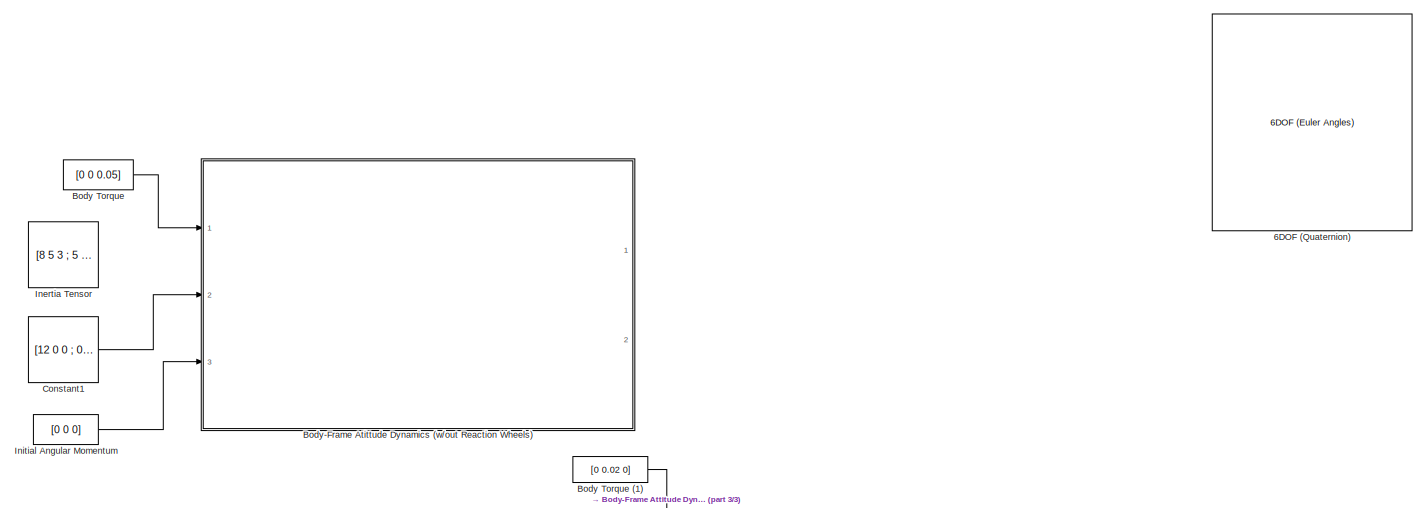
[diagram: root canvas - part 1/3, top center region]
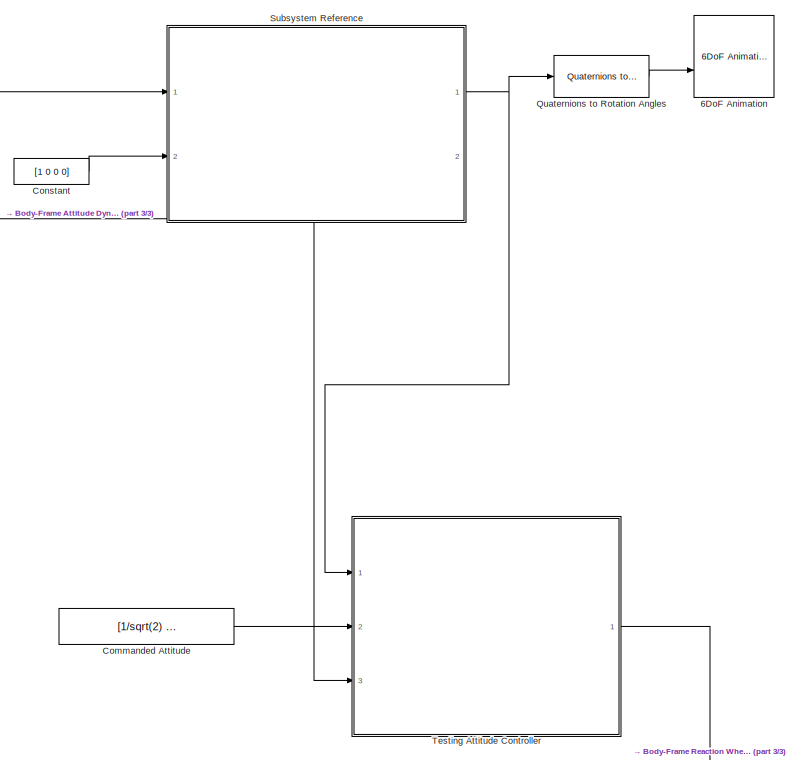
[diagram: root canvas - part 2/3, bottom right region]
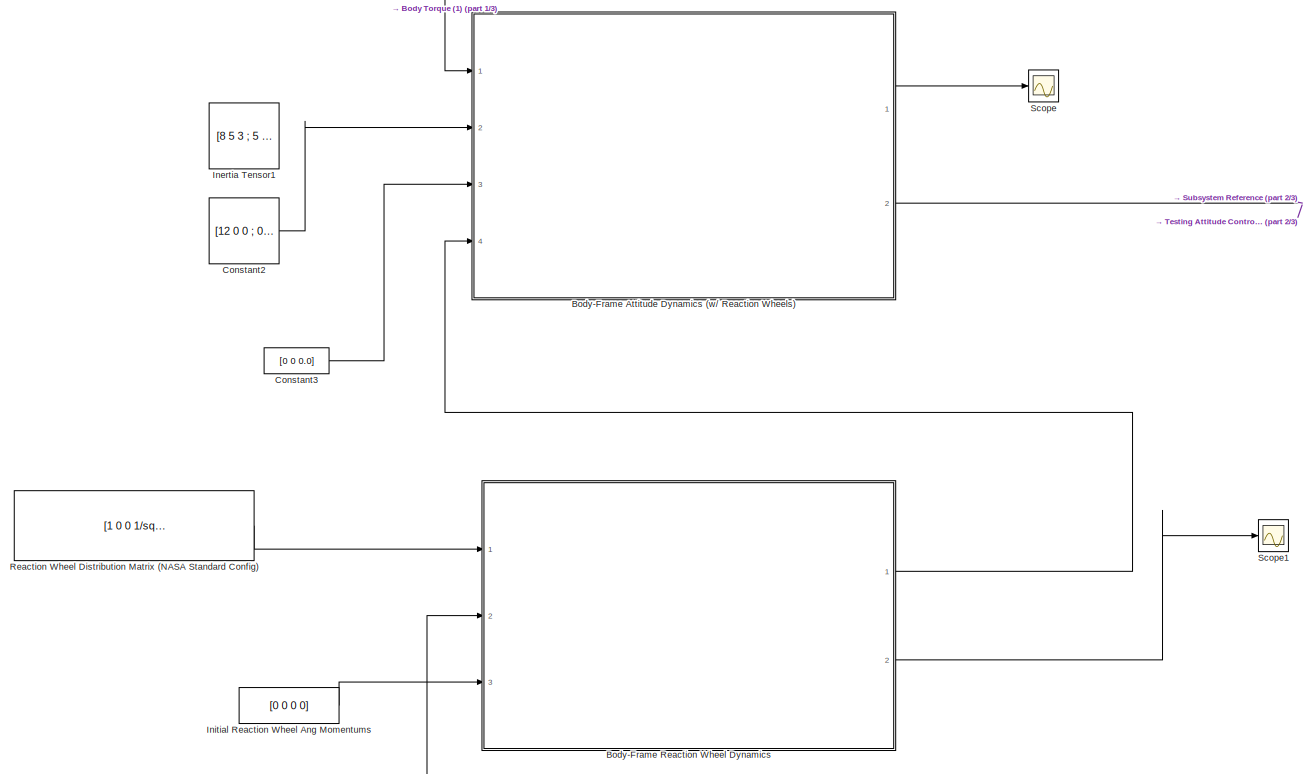
[diagram: root canvas - part 3/3, bottom left region]
MODEL slx_41835d9d7def
KIND model
CONFIG AbsTol = auto
CONFIG EnableMultiTasking = off
CONFIG FixedStep = auto
CONFIG MaxStep = auto
CONFIG MinStep = auto
CONFIG RelTol = 1e-3
CONFIG SampleTimeConstraint = Unconstrained
CONFIG SolverName = VariableStepAuto
CONFIG StartTime = 0.0
CONFIG StopTime = 1000
BLOCK [Reference] 6DOF (Quaternion)  REF=shared6dof/6DOF (Euler Angles)
  Ports = [2, 8]
  SourceBlock = shared6dof/6DOF (Euler Angles)
  SourceProductBaseCode = AE,PW,DR,MT,VE
  SourceType = 6DOF EoM (Body Axis)
BLOCK [Reference] 6DoF Animation  REF=aerolibanim/6DoF Animation
  Ports = [2]
  SourceBlock = aerolibanim/6DoF Animation
  SourceProductBaseCode = AE
  SourceType = 6DoF_Animation
BLOCK [Constant] Body Torque
  Value = [0 0 0.05]
BLOCK [Constant] Body Torque (1)
  Value = [0 0.02 0]
BLOCK [SubSystem] Body-Frame Atittude Dynamics (w//out Reaction Wheels)
  Ports = [3, 2]
  ReferencedSubsystem = quat_dyn_body
  RequestExecContextInheritance = off
BLOCK [SubSystem] Body-Frame Attitude Dynamics (w// Reaction Wheels)
  Ports = [4, 2]
  ReferencedSubsystem = quat_dyn_body_w_wheels
  RequestExecContextInheritance = off
BLOCK [SubSystem] Body-Frame Reaction Wheel Dynamics
  Ports = [3, 2]
  ReferencedSubsystem = wheel_dyn
  RequestExecContextInheritance = off
BLOCK [Constant] Commanded Attitude
  Value = [1/sqrt(2) 0 1/sqrt(2) 0]
BLOCK [Constant] Constant
  Value = [1 0 0 0]
BLOCK [Constant] Constant1
  Value = [12 0 0 ; 0 10 0 ; 0 0 11]
BLOCK [Constant] Constant2
  Value = [12 0 0 ; 0 10 0 ; 0 0 11]
BLOCK [Constant] Constant3
  Value = [0 0 0.0]
BLOCK [Constant] Inertia Tensor
  Value = [8 5 3 ; 5 10 4 ; 3 4 11]
BLOCK [Constant] Inertia Tensor1
  Value = [8 5 3 ; 5 10 4 ; 3 4 11]
BLOCK [Constant] Initial Angular Momentum
  Value = [0 0 0]
BLOCK [Constant] Initial Reaction Wheel Ang Momentums
  Value = [0 0 0 0]
BLOCK [Reference] Quaternions to Rotation Angles  REF=sharedtransform/Quaternions to Rotation Angles
  AttributesFormatString = Rotation Order: %<rotationOrder>
  Ports = [1, 1]
  SourceBlock = sharedtransform/Quaternions to Rotation Angles
  SourceProductBaseCode = AE,PW,DR,MT,VE
  SourceType = Quat2Ang
BLOCK [Constant] Reaction Wheel Distribution Matrix (NASA Standard Config)
  Value = [1 0 0 1/sqrt(3); 0 1 0 1/sqrt(3) ; 0 0 1 1/sqrt(3)]
BLOCK [Scope] Scope
  Floating = off
  NumInputPorts = 1
  Ports = [1]
  ScopeSpecificationString = Simulink.scopes.TimeScopeBlockCfg('CurrentConfiguration', extmgr.ConfigurationSet(extmgr.Configuration('Core','General UI',true),extmgr.Configuration('Core','Source UI',true),extmgr.Configuration('Sources','WiredSimulink',true),extmgr.Configuration('Visuals','Time Domain',true,'SerializedDisplays',{struct('MinYLimReal','-2.5','MaxYLimReal','22.5','YLabelReal','','MinYLimMag','0.00000','MaxYLimMag'...<+1493ch>
BLOCK [Scope] Scope1
  Floating = off
  NumInputPorts = 1
  Ports = [1]
  ScopeSpecificationString = Simulink.scopes.TimeScopeBlockCfg('CurrentConfiguration', extmgr.ConfigurationSet(extmgr.Configuration('Core','General UI',true),extmgr.Configuration('Core','Source UI',true),extmgr.Configuration('Sources','WiredSimulink',true,'DataLoggingVariableName','ScopeData1'),extmgr.Configuration('Visuals','Time Domain',true,'SerializedDisplays',{struct('MinYLimReal','-5.83333','MaxYLimReal','19.16667','YLa...<+1553ch>
BLOCK [SubSystem] Subsystem Reference
  Ports = [2, 2]
  ReferencedSubsystem = quat_kin_body
  RequestExecContextInheritance = off
BLOCK [SubSystem] Testing Attitude Controller
  Ports = [3, 1]
  ReferencedSubsystem = test_attit_cntrl
  RequestExecContextInheritance = off
LINE Body Torque (1):1 -> Body-Frame Attitude Dynamics (w// Reaction Wheels):1
LINE Body Torque:1 -> Body-Frame Atittude Dynamics (w//out Reaction Wheels):1
LINE Body-Frame Attitude Dynamics (w// Reaction Wheels):1 -> Scope:1
NET Body-Frame Attitude Dynamics (w// Reaction Wheels):2 -> Subsystem Reference:1, Testing Attitude Controller:3
LINE Body-Frame Reaction Wheel Dynamics:1 -> Body-Frame Attitude Dynamics (w// Reaction Wheels):4
LINE Body-Frame Reaction Wheel Dynamics:2 -> Scope1:1
LINE Commanded Attitude:1 -> Testing Attitude Controller:2
LINE Constant1:1 -> Body-Frame Atittude Dynamics (w//out Reaction Wheels):2
LINE Constant2:1 -> Body-Frame Attitude Dynamics (w// Reaction Wheels):2
LINE Constant3:1 -> Body-Frame Attitude Dynamics (w// Reaction Wheels):3
LINE Constant:1 -> Subsystem Reference:2
LINE Initial Angular Momentum:1 -> Body-Frame Atittude Dynamics (w//out Reaction Wheels):3
LINE Initial Reaction Wheel Ang Momentums:1 -> Body-Frame Reaction Wheel Dynamics:3
LINE Quaternions to Rotation Angles:1 -> 6DoF Animation:2
LINE Reaction Wheel Distribution Matrix (NASA Standard Config):1 -> Body-Frame Reaction Wheel Dynamics:1
NET Subsystem Reference:1 -> Quaternions to Rotation Angles:1, Testing Attitude Controller:1
LINE Testing Attitude Controller:1 -> Body-Frame Reaction Wheel Dynamics:2
note: NET lines group one-source signal fan-out (src -> all destinations, sorted); 1:1 wires keep LINE
